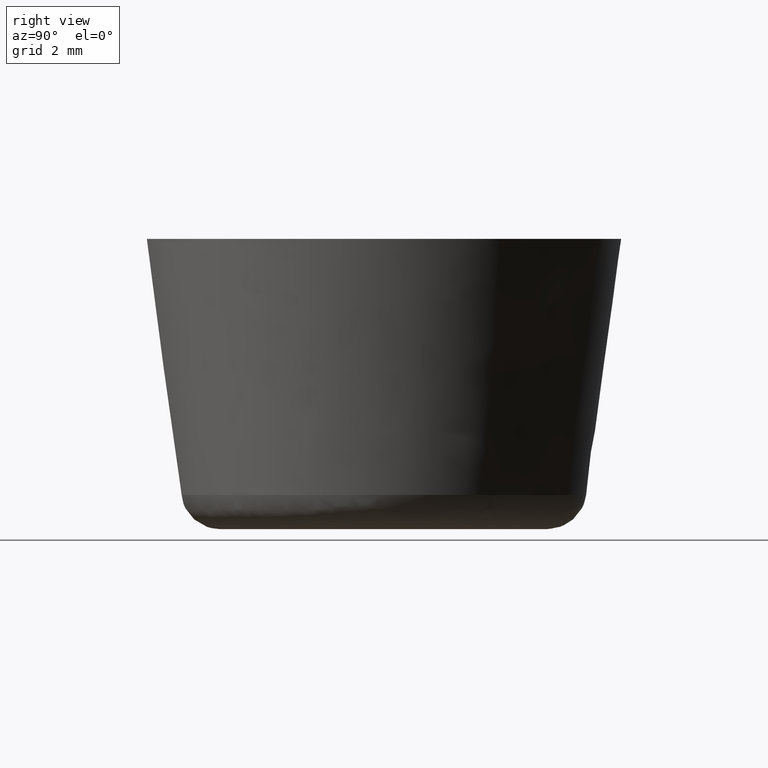
[diagram: clean part render]
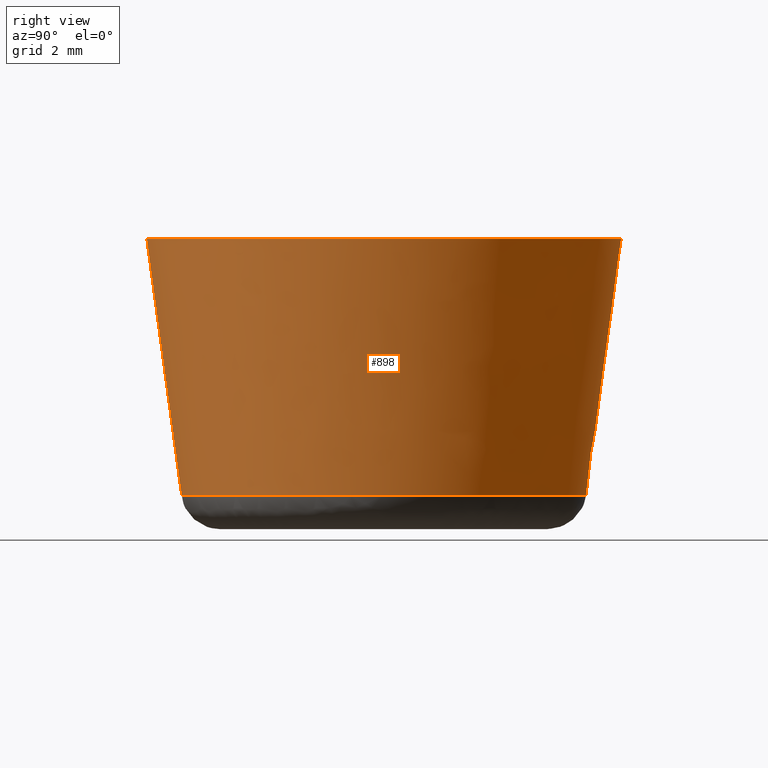
[diagram: same view with one face highlighted and labeled with its STEP entity id]
A machine part, right view. The second image highlights one B-rep face of the part: STEP entity #898.
In plain terms, the highlighted face is a freeform B-spline surface patch.
Its self-contained STEP definition (entity closure, byte-faithful):
#697=CARTESIAN_POINT('',(0.602318470485690,-7.653242797028248,1.297328285197202));
#698=VERTEX_POINT('',#697);
#699=CARTESIAN_POINT('',(-7.138484838059513,-2.824348576882155,1.297327242444042));
#700=VERTEX_POINT('',#699);
#716=CARTESIAN_POINT('',(0.706126681616674,-8.972256154220801,10.999998120822321));
#717=VERTEX_POINT('',#716);
#718=CARTESIAN_POINT('',(0.602318470485690,-7.653242797028248,1.297328285197202));
#719=CARTESIAN_POINT('',(0.706126681616674,-8.972256154220801,10.999998120822321));
#720=QUASI_UNIFORM_CURVE('',1,(#718,#719),.UNSPECIFIED.,.F.,.U.);
#721=EDGE_CURVE('',#698,#717,#720,.T.);
#723=CARTESIAN_POINT('',(-8.368780687199132,-3.311118355610573,10.999997944756300));
#724=VERTEX_POINT('',#723);
#740=CARTESIAN_POINT('',(-7.138484838059513,-2.824348576882155,1.297327242444042));
#741=CARTESIAN_POINT('',(-8.368780687199132,-3.311118355610573,10.999997944756300));
#742=QUASI_UNIFORM_CURVE('',1,(#740,#741),.UNSPECIFIED.,.F.,.U.);
#743=EDGE_CURVE('',#700,#724,#742,.T.);
#748=CARTESIAN_POINT('',(0.599728030720520,-7.620267144357735,1.054761950975807));
#749=CARTESIAN_POINT('',(8.219995175078255,-7.020539113637215,1.054761950975807));
#750=CARTESIAN_POINT('',(7.620267144357735,0.599728030720520,1.054761950975807));
#751=CARTESIAN_POINT('',(7.020539113637215,8.219995175078255,1.054761950975807));
#752=CARTESIAN_POINT('',(-0.599728030720520,7.620267144357735,1.054761950975807));
#753=CARTESIAN_POINT('',(-8.219995175078255,7.020539113637215,1.054761950975807));
#754=CARTESIAN_POINT('',(-7.620267144357735,-0.599728030720520,1.054761950975807));
#755=CARTESIAN_POINT('',(-7.530175336989975,-1.744452980187277,1.054761950975807));
#756=CARTESIAN_POINT('',(-7.107726034002156,-2.812183437789553,1.054761950975807));
#757=CARTESIAN_POINT('',(0.708791957321362,-9.006055725079161,11.248630951225611));
#758=CARTESIAN_POINT('',(9.714847682400523,-8.297263767757800,11.248630951225605));
#759=CARTESIAN_POINT('',(9.006055725079161,0.708791957321362,11.248630951225611));
#760=CARTESIAN_POINT('',(8.297263767757800,9.714847682400523,11.248630951225605));
#761=CARTESIAN_POINT('',(-0.708791957321362,9.006055725079161,11.248630951225611));
#762=CARTESIAN_POINT('',(-9.714847682400523,8.297263767757800,11.248630951225605));
#763=CARTESIAN_POINT('',(-9.006055725079161,-0.708791957321362,11.248630951225611));
#764=CARTESIAN_POINT('',(-8.899580214161160,-2.061691598434268,11.248630951225607));
#765=CARTESIAN_POINT('',(-8.400306121579487,-3.323594864863761,11.248630951225609));
#773=(BOUNDED_SURFACE()B_SPLINE_SURFACE(2,1,((#748,#757),(#749,#758),(#750,#759),(#751,#760),(#752,#761),(#753,#762),(#754,#763),(#755,#764),(#756,#765)),.UNSPECIFIED.,.F.,.F.,.U.)B_SPLINE_SURFACE_WITH_KNOTS((3,2,2,2,3),(2,2),(0.0,14.967862624462191,29.935725248924388,44.903587873386577,47.897160398279020),(0.0,10.288210248862400),.UNSPECIFIED.)GEOMETRIC_REPRESENTATION_ITEM()RATIONAL_B_SPLINE_SURFACE(((1.0,1.0),(0.707106781186548,0.707106781186548),(1.0,1.0),(0.707106781186548,0.707106781186548),(1.0,1.0),(0.707106781186548,0.707106781186548),(1.0,1.0),(0.941421356237310,0.941421356237310),(0.906274169979695,0.906274169979695)))REPRESENTATION_ITEM('')SURFACE());
#774=CARTESIAN_POINT('',(-7.676908000000000,0.0,1.297330000000000));
#775=VERTEX_POINT('',#774);
#776=CARTESIAN_POINT('',(-7.138484838059514,-2.824348576882155,1.297327242444041));
#777=CARTESIAN_POINT('',(-7.676907825170687,-1.463495699855819,1.297328621222021));
#778=CARTESIAN_POINT('',(-7.676908000000000,0.0,1.297330000000000));
#786=(BOUNDED_CURVE()B_SPLINE_CURVE(2,(#776,#777,#778),.UNSPECIFIED.,.F.,.U.)B_SPLINE_CURVE_WITH_KNOTS((3,3),(0.937532638231760,1.0),.UNSPECIFIED.)CURVE()GEOMETRIC_REPRESENTATION_ITEM()RATIONAL_B_SPLINE_CURVE((0.890203290996165,0.926814933363663,1.0))REPRESENTATION_ITEM(''));
#787=EDGE_CURVE('',#700,#775,#786,.T.);
#788=ORIENTED_EDGE('',*,*,#787,.F.);
#789=ORIENTED_EDGE('',*,*,#743,.T.);
#790=CARTESIAN_POINT('',(-9.0,0.0,11.0));
#791=VERTEX_POINT('',#790);
#792=CARTESIAN_POINT('',(-8.368780687199132,-3.311118355610573,10.999997944756295));
#793=CARTESIAN_POINT('',(-8.999999869697522,-1.715725779638254,10.999998972378149));
#794=CARTESIAN_POINT('',(-9.0,0.0,11.0));
#802=(BOUNDED_CURVE()B_SPLINE_CURVE(2,(#792,#793,#794),.UNSPECIFIED.,.F.,.U.)B_SPLINE_CURVE_WITH_KNOTS((3,3),(0.937532605537543,1.0),.UNSPECIFIED.)CURVE()GEOMETRIC_REPRESENTATION_ITEM()RATIONAL_B_SPLINE_CURVE((0.890203252672514,0.926814895060005,1.0))REPRESENTATION_ITEM(''));
#803=EDGE_CURVE('',#724,#791,#802,.T.);
#804=ORIENTED_EDGE('',*,*,#803,.T.);
#805=CARTESIAN_POINT('',(9.0,0.0,11.0));
#806=VERTEX_POINT('',#805);
#807=CARTESIAN_POINT('',(-9.0,0.0,11.0));
#808=CARTESIAN_POINT('',(-9.0,9.0,11.0));
#809=CARTESIAN_POINT('',(0.0,9.0,11.0));
#810=CARTESIAN_POINT('',(9.0,9.0,11.0));
#811=CARTESIAN_POINT('',(9.0,0.0,11.0));
#819=(BOUNDED_CURVE()B_SPLINE_CURVE(2,(#807,#808,#809,#810,#811),.UNSPECIFIED.,.F.,.U.)B_SPLINE_CURVE_WITH_KNOTS((3,2,3),(0.0,0.250000000000000,0.500000000000000),.UNSPECIFIED.)CURVE()GEOMETRIC_REPRESENTATION_ITEM()RATIONAL_B_SPLINE_CURVE((1.0,0.707106781186547,1.0,0.707106781186547,1.0))REPRESENTATION_ITEM(''));
#820=EDGE_CURVE('',#791,#806,#819,.T.);
#821=ORIENTED_EDGE('',*,*,#820,.T.);
#822=CARTESIAN_POINT('',(9.0,0.0,11.0));
#823=CARTESIAN_POINT('',(8.999999989947378,-8.319519096433320,10.999999060411161));
#824=CARTESIAN_POINT('',(0.706126681616674,-8.972256154220801,10.999998120822324));
#832=(BOUNDED_CURVE()B_SPLINE_CURVE(2,(#822,#823,#824),.UNSPECIFIED.,.F.,.U.)B_SPLINE_CURVE_WITH_KNOTS((3,3),(0.500000000000000,0.736331399216788),.UNSPECIFIED.)CURVE()GEOMETRIC_REPRESENTATION_ITEM()RATIONAL_B_SPLINE_CURVE((1.0,0.723120543106831,0.969723561909238))REPRESENTATION_ITEM(''));
#833=EDGE_CURVE('',#806,#717,#832,.T.);
#834=ORIENTED_EDGE('',*,*,#833,.T.);
#835=ORIENTED_EDGE('',*,*,#721,.F.);
#836=CARTESIAN_POINT('',(7.676908000000000,0.0,1.297330000000000));
#837=VERTEX_POINT('',#836);
#838=CARTESIAN_POINT('',(7.676908000000000,0.0,1.297330000000000));
#839=CARTESIAN_POINT('',(7.676907990826702,-7.096465081406480,1.297329142598601));
#840=CARTESIAN_POINT('',(0.602318470485690,-7.653242797028248,1.297328285197202));
#848=(BOUNDED_CURVE()B_SPLINE_CURVE(2,(#838,#839,#840),.UNSPECIFIED.,.F.,.U.)B_SPLINE_CURVE_WITH_KNOTS((3,3),(0.500000000000000,0.736331407494371),.UNSPECIFIED.)CURVE()GEOMETRIC_REPRESENTATION_ITEM()RATIONAL_B_SPLINE_CURVE((1.0,0.723120533409040,0.969723579183938))REPRESENTATION_ITEM(''));
#849=EDGE_CURVE('',#837,#698,#848,.T.);
#850=ORIENTED_EDGE('',*,*,#849,.F.);
#851=CARTESIAN_POINT('',(1.301221809791649,7.565826945926907,1.297329586158857));
#852=VERTEX_POINT('',#851);
#853=CARTESIAN_POINT('',(1.301221809791649,7.565826945926907,1.297329586158857));
#854=CARTESIAN_POINT('',(7.676908000000000,6.469293606062931,1.297330000000000));
#855=CARTESIAN_POINT('',(7.676908000000000,0.0,1.297330000000000));
#863=(BOUNDED_CURVE()B_SPLINE_CURVE(2,(#853,#854,#855),.UNSPECIFIED.,.F.,.U.)B_SPLINE_CURVE_WITH_KNOTS((3,3),(0.279150905177840,0.500000000000000),.UNSPECIFIED.)CURVE()GEOMETRIC_REPRESENTATION_ITEM()RATIONAL_B_SPLINE_CURVE((0.939659769685429,0.741259190982001,1.0))REPRESENTATION_ITEM(''));
#864=EDGE_CURVE('',#852,#837,#863,.T.);
#865=ORIENTED_EDGE('',*,*,#864,.F.);
#866=CARTESIAN_POINT('',(-7.627863082045480,0.866382472437226,1.297328732659324));
#867=VERTEX_POINT('',#866);
#868=CARTESIAN_POINT('',(-7.627863082045480,0.866382472437226,1.297328732659324));
#869=CARTESIAN_POINT('',(-6.854314936013569,7.676907965271343,1.297329092479444));
#870=CARTESIAN_POINT('',(6.254833E-009,7.676907947534367,1.297329511675821));
#871=CARTESIAN_POINT('',(0.655352215948372,7.676907945838506,1.297329551755869));
#872=CARTESIAN_POINT('',(1.301221809791649,7.565826945926907,1.297329586158857));
#880=(BOUNDED_CURVE()B_SPLINE_CURVE(2,(#868,#869,#870,#871,#872),.UNSPECIFIED.,.F.,.U.)B_SPLINE_CURVE_WITH_KNOTS((3,2,3),(0.019555639323048,0.250000000000000,0.279150905177840),.UNSPECIFIED.)CURVE()GEOMETRIC_REPRESENTATION_ITEM()RATIONAL_B_SPLINE_CURVE((0.957762578406053,0.730017637775678,1.0,0.965847590204547,0.939659769685429))REPRESENTATION_ITEM(''));
#881=EDGE_CURVE('',#867,#852,#880,.T.);
#882=ORIENTED_EDGE('',*,*,#881,.F.);
#883=CARTESIAN_POINT('',(-7.676908000000000,0.0,1.297330000000000));
#884=CARTESIAN_POINT('',(-7.676907914140787,0.434579414740073,1.297329366329662));
#885=CARTESIAN_POINT('',(-7.627863082045480,0.866382472437226,1.297328732659324));
#893=(BOUNDED_CURVE()B_SPLINE_CURVE(2,(#883,#884,#885),.UNSPECIFIED.,.F.,.U.)B_SPLINE_CURVE_WITH_KNOTS((3,3),(0.0,0.019555639323048),.UNSPECIFIED.)CURVE()GEOMETRIC_REPRESENTATION_ITEM()RATIONAL_B_SPLINE_CURVE((1.0,0.977089143410870,0.957762578406053))REPRESENTATION_ITEM(''));
#894=EDGE_CURVE('',#775,#867,#893,.T.);
#895=ORIENTED_EDGE('',*,*,#894,.F.);
#896=EDGE_LOOP('',(#788,#789,#804,#821,#834,#835,#850,#865,#882,#895));
#897=FACE_OUTER_BOUND('',#896,.T.);
#898=ADVANCED_FACE('',(#897),#773,.T.);